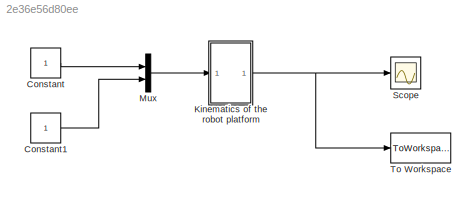
MODEL slx_2e36e56d80ee
KIND model
CONFIG AbsTol = auto
CONFIG FixedStep = auto
CONFIG MaxStep = 0.01
CONFIG MinStep = auto
CONFIG RelTol = 1e-8
CONFIG SampleTimeConstraint = Unconstrained
CONFIG Solver = VariableStepAuto
CONFIG SolverMode = Auto
CONFIG SolverName = VariableStepAuto
CONFIG StartTime = 0.0
CONFIG StopTime = 20
BLOCK [Constant] Constant
BLOCK [Constant] Constant1
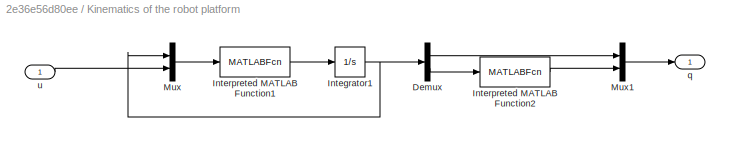
BLOCK [SubSystem] Kinematics of the robot platform
  Ports = [1, 1]
  RequestExecContextInheritance = off
  Variant = off
BLOCK [Demux] Kinematics of the robot platform/Demux
  DisplayOption = bar
  Outputs = [2 1]
  Ports = [1, 2]
BLOCK [Integrator] Kinematics of the robot platform/Integrator1
  InitialCondition = [0; 0; 0]
  Ports = [1, 1]
BLOCK [MATLABFcn] Kinematics of the robot platform/Interpreted MATLAB Function1
  MATLABFcn = unicycle
  Ports = [1, 1]
BLOCK [MATLABFcn] Kinematics of the robot platform/Interpreted MATLAB Function2
  MATLABFcn = conv_angle
  Ports = [1, 1]
BLOCK [Mux] Kinematics of the robot platform/Mux
  DisplayOption = bar
  Inputs = [3 2]
  Ports = [2, 1]
BLOCK [Mux] Kinematics of the robot platform/Mux1
  DisplayOption = bar
  Inputs = [2 1]
  Ports = [2, 1]
BLOCK [Outport] Kinematics of the robot platform/q
  IconDisplay = Port number
BLOCK [Inport] Kinematics of the robot platform/u
  IconDisplay = Port number
BLOCK [Mux] Mux
  DisplayOption = bar
  Inputs = 2
  Ports = [2, 1]
BLOCK [Scope] Scope
  Ports = [1]
  ScopeSpecificationString = Simulink.scopes.TimeScopeBlockCfg('CurrentConfiguration', extmgr.ConfigurationSet(extmgr.Configuration('Core','General UI',true),extmgr.Configuration('Core','Source UI',true),extmgr.Configuration('Sources','WiredSimulink',true),extmgr.Configuration('Visuals','Time Domain',true,'SerializedDisplays',{struct('MinYLimReal','-2.20614','MaxYLimReal','9.85527','YLabelReal','','MinYLimMag','0.00000','MaxY...<+1455ch>
BLOCK [ToWorkspace] To Workspace
  FixptAsFi = on
  MaxDataPoints = inf
  Ports = [1]
  SampleTime = -1
  Save2DSignal = 3-D array (concatenate along third dimension)
  VariableName = q
LINE Constant1:1 -> Mux:2
LINE Constant:1 -> Mux:1
LINE Kinematics of the robot platform/Demux:1 -> Kinematics of the robot platform/Mux1:1
LINE Kinematics of the robot platform/Demux:2 -> Kinematics of the robot platform/Interpreted MATLAB Function2:1
NET Kinematics of the robot platform/Integrator1:1 -> Kinematics of the robot platform/Demux:1, Kinematics of the robot platform/Mux:1
LINE Kinematics of the robot platform/Interpreted MATLAB Function1:1 -> Kinematics of the robot platform/Integrator1:1
LINE Kinematics of the robot platform/Interpreted MATLAB Function2:1 -> Kinematics of the robot platform/Mux1:2
LINE Kinematics of the robot platform/Mux1:1 -> Kinematics of the robot platform/q:1
LINE Kinematics of the robot platform/Mux:1 -> Kinematics of the robot platform/Interpreted MATLAB Function1:1
LINE Kinematics of the robot platform/u:1 -> Kinematics of the robot platform/Mux:2
NET Kinematics of the robot platform:1 -> Scope:1, To Workspace:1
LINE Mux:1 -> Kinematics of the robot platform:1
note: NET lines group one-source signal fan-out (src -> all destinations, sorted); 1:1 wires keep LINE
